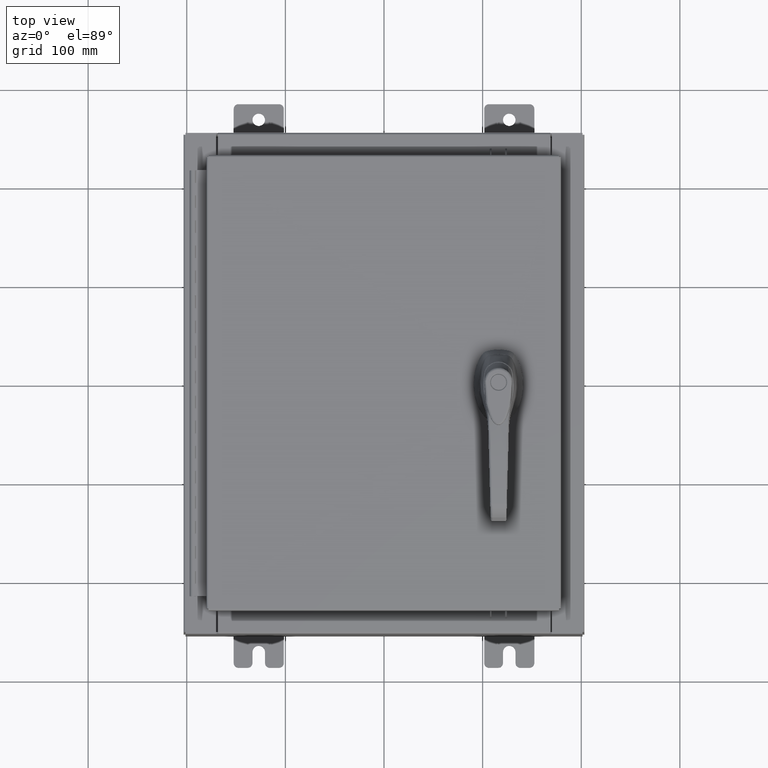
[diagram: clean part render]
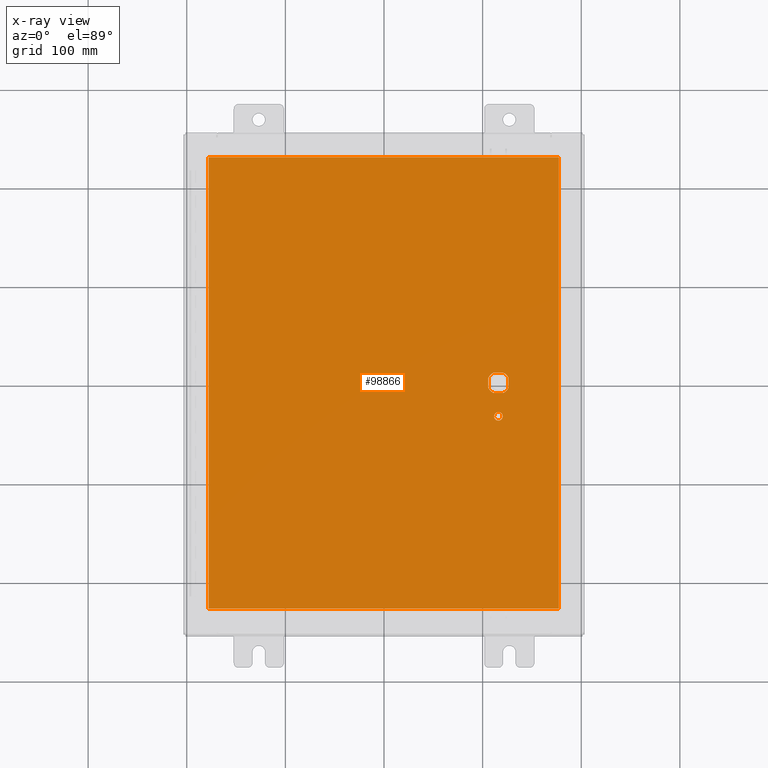
[diagram: x-ray — body ghosted, one internal face saturated and labeled with its STEP entity id]
A machine part, top view, then the same camera in x-ray: the body is ghosted and one INTERNAL B-rep face — a face not visible from any outside direction — is saturated and labeled: STEP entity #98866.
In plain terms, the highlighted planar face has unit normal (0, 0, -1).
Its self-contained STEP definition (entity closure, byte-faithful):
#645 = CARTESIAN_POINT ( 'NONE',  ( -6.990299999999997700, 9.006299999999999500, -0.07470000000000000300 ) ) ;
#1869 = CARTESIAN_POINT ( 'NONE',  ( 4.578000000000002100, 0.0000000000000000000, -0.07470000000000003000 ) ) ;
#2166 = FACE_BOUND ( 'NONE', #15851, .T. ) ;
#2821 = CARTESIAN_POINT ( 'NONE',  ( -6.990299999999996800, -9.006299999999997800, -0.07470000000000000300 ) ) ;
#3172 = CARTESIAN_POINT ( 'NONE',  ( 4.578000000000002100, -1.338000000000000100, -0.07470000000000003000 ) ) ;
#4169 = LINE ( 'NONE', #46514, #68798 ) ;
#5804 = LINE ( 'NONE', #67819, #92848 ) ;
#6265 = VECTOR ( 'NONE', #65821, 39.37007874015748100 ) ;
#6801 = ORIENTED_EDGE ( 'NONE', *, *, #94093, .T. ) ;
#7633 = DIRECTION ( 'NONE',  ( -1.000000000000000000, 0.0000000000000000000, -0.0000000000000000000 ) ) ;
#9697 = CARTESIAN_POINT ( 'NONE',  ( 4.749500000000002100, -1.338000000000000100, -0.07470000000000003000 ) ) ;
#10336 = DIRECTION ( 'NONE',  ( -1.000000000000000000, 0.0000000000000000000, 0.0000000000000000000 ) ) ;
#11613 = DIRECTION ( 'NONE',  ( -1.000000000000000000, 0.0000000000000000000, 0.0000000000000000000 ) ) ;
#12054 = CARTESIAN_POINT ( 'NONE',  ( 4.578000000000002100, 0.0000000000000000000, -0.07470000000000003000 ) ) ;
#12733 = EDGE_LOOP ( 'NONE', ( #17317, #90013, #29049, #48727 ) ) ;
#13422 = ORIENTED_EDGE ( 'NONE', *, *, #51577, .T. ) ;
#15851 = EDGE_LOOP ( 'NONE', ( #79810, #97654 ) ) ;
#16171 = LINE ( 'NONE', #42389, #61040 ) ;
#17317 = ORIENTED_EDGE ( 'NONE', *, *, #42264, .F. ) ;
#17551 = DIRECTION ( 'NONE',  ( -0.0000000000000000000, -0.0000000000000000000, 1.000000000000000000 ) ) ;
#17759 = CARTESIAN_POINT ( 'NONE',  ( 4.406500000000002100, -1.338000000000000100, -0.07470000000000003000 ) ) ;
#18721 = VECTOR ( 'NONE', #100849, 39.37007874015748100 ) ;
#18889 = DIRECTION ( 'NONE',  ( 0.0000000000000000000, -1.000000000000000000, 0.0000000000000000000 ) ) ;
#20543 = DIRECTION ( 'NONE',  ( -1.000000000000000000, 0.0000000000000000000, 0.0000000000000000000 ) ) ;
#21920 = FACE_OUTER_BOUND ( 'NONE', #12733, .T. ) ;
#25306 = CARTESIAN_POINT ( 'NONE',  ( 4.175000000000076200, 0.2002273707563080300, -0.07470000000000003000 ) ) ;
#26927 = CIRCLE ( 'NONE', #86958, 0.4499999999999156900 ) ;
#28110 = LINE ( 'NONE', #36228, #90084 ) ;
#29033 = DIRECTION ( 'NONE',  ( -0.0000000000000000000, -0.0000000000000000000, 1.000000000000000000 ) ) ;
#29049 = ORIENTED_EDGE ( 'NONE', *, *, #64092, .F. ) ;
#29944 = CARTESIAN_POINT ( 'NONE',  ( 4.377772629243692900, -0.4029999999999250300, -0.07470000000000003000 ) ) ;
#30597 = VECTOR ( 'NONE', #104120, 39.37007874015748100 ) ;
#30913 = CARTESIAN_POINT ( 'NONE',  ( 6.990300000000002200, -9.006299999999997800, -0.07470000000000000300 ) ) ;
#32994 = CARTESIAN_POINT ( 'NONE',  ( 6.990300000000002200, -9.006299999999997800, -0.07470000000000021100 ) ) ;
#35909 = LINE ( 'NONE', #45079, #30597 ) ;
#36182 = EDGE_CURVE ( 'NONE', #38286, #81662, #56341, .T. ) ;
#36228 = CARTESIAN_POINT ( 'NONE',  ( -6.990299999999997700, 9.006300000000001300, -0.07470000000000019700 ) ) ;
#36663 = ORIENTED_EDGE ( 'NONE', *, *, #79331, .T. ) ;
#36698 = DIRECTION ( 'NONE',  ( 1.000000000000000000, 0.0000000000000000000, 0.0000000000000000000 ) ) ;
#37903 = AXIS2_PLACEMENT_3D ( 'NONE', #79577, #29033, #88035 ) ;
#38286 = VERTEX_POINT ( 'NONE', #60749 ) ;
#40753 = DIRECTION ( 'NONE',  ( 0.0000000000000000000, 0.0000000000000000000, -1.000000000000000000 ) ) ;
#41127 = CARTESIAN_POINT ( 'NONE',  ( 0.0000000000000000000, 0.0000000000000000000, -0.07470000000000000300 ) ) ;
#41400 = CARTESIAN_POINT ( 'NONE',  ( 4.578000000000002100, 0.0000000000000000000, -0.07470000000000003000 ) ) ;
#41401 = EDGE_CURVE ( 'NONE', #65090, #51188, #16171, .T. ) ;
#42196 = CARTESIAN_POINT ( 'NONE',  ( 4.175000000000076200, -0.2002273707563079800, -0.07470000000000003000 ) ) ;
#42264 = EDGE_CURVE ( 'NONE', #93341, #89087, #108454, .T. ) ;
#42389 = CARTESIAN_POINT ( 'NONE',  ( 4.175000000000076200, 0.0000000000000000000, -0.07470000000000003000 ) ) ;
#42497 = VERTEX_POINT ( 'NONE', #645 ) ;
#42983 = CARTESIAN_POINT ( 'NONE',  ( 4.980999999999927900, -0.2002273707563080300, -0.07470000000000003000 ) ) ;
#45079 = CARTESIAN_POINT ( 'NONE',  ( 0.0000000000000000000, 0.4029999999999252000, -0.07470000000000003000 ) ) ;
#45930 = AXIS2_PLACEMENT_3D ( 'NONE', #3172, #62139, #11613 ) ;
#46492 = AXIS2_PLACEMENT_3D ( 'NONE', #41127, #40753, #7633 ) ;
#46514 = CARTESIAN_POINT ( 'NONE',  ( -6.990299999999997700, -9.006299999999997800, -0.07470000000000021100 ) ) ;
#46761 = EDGE_CURVE ( 'NONE', #84354, #93341, #4169, .T. ) ;
#48415 = CIRCLE ( 'NONE', #89301, 0.4499999999999156900 ) ;
#48727 = ORIENTED_EDGE ( 'NONE', *, *, #63129, .F. ) ;
#48837 = CARTESIAN_POINT ( 'NONE',  ( 4.980999999999927900, 0.0000000000000000000, -0.07470000000000003000 ) ) ;
#49193 = CIRCLE ( 'NONE', #45930, 0.1715000000000000700 ) ;
#49857 = DIRECTION ( 'NONE',  ( -1.000000000000000000, 0.0000000000000000000, 0.0000000000000000000 ) ) ;
#51188 = VERTEX_POINT ( 'NONE', #42196 ) ;
#51577 = EDGE_CURVE ( 'NONE', #51188, #59632, #48415, .T. ) ;
#52526 = CARTESIAN_POINT ( 'NONE',  ( 4.778227370756312100, 0.4029999999999250300, -0.07470000000000003000 ) ) ;
#52766 = CIRCLE ( 'NONE', #72213, 0.4499999999999156900 ) ;
#53258 = CARTESIAN_POINT ( 'NONE',  ( 0.0000000000000000000, -0.4029999999999252000, -0.07470000000000003000 ) ) ;
#53387 = VERTEX_POINT ( 'NONE', #52526 ) ;
#54476 = VERTEX_POINT ( 'NONE', #17759 ) ;
#54989 = DIRECTION ( 'NONE',  ( 1.000000000000000000, -0.0000000000000000000, -0.0000000000000000000 ) ) ;
#56287 = EDGE_CURVE ( 'NONE', #54476, #65850, #83770, .T. ) ;
#56341 = LINE ( 'NONE', #48837, #6265 ) ;
#59632 = VERTEX_POINT ( 'NONE', #29944 ) ;
#60749 = CARTESIAN_POINT ( 'NONE',  ( 4.980999999999927900, 0.2002273707563080300, -0.07470000000000003000 ) ) ;
#60813 = DIRECTION ( 'NONE',  ( -0.0000000000000000000, -0.0000000000000000000, 1.000000000000000000 ) ) ;
#61040 = VECTOR ( 'NONE', #101424, 39.37007874015748100 ) ;
#62139 = DIRECTION ( 'NONE',  ( -0.0000000000000000000, -0.0000000000000000000, 1.000000000000000000 ) ) ;
#63129 = EDGE_CURVE ( 'NONE', #89087, #42497, #5804, .T. ) ;
#63255 = EDGE_CURVE ( 'NONE', #38286, #53387, #65107, .T. ) ;
#63584 = EDGE_CURVE ( 'NONE', #65850, #54476, #49193, .T. ) ;
#64092 = EDGE_CURVE ( 'NONE', #42497, #84354, #28110, .T. ) ;
#65090 = VERTEX_POINT ( 'NONE', #25306 ) ;
#65107 = CIRCLE ( 'NONE', #98975, 0.4499999999999156900 ) ;
#65821 = DIRECTION ( 'NONE',  ( 0.0000000000000000000, -1.000000000000000000, 0.0000000000000000000 ) ) ;
#65850 = VERTEX_POINT ( 'NONE', #9697 ) ;
#67819 = CARTESIAN_POINT ( 'NONE',  ( 6.990300000000002200, 9.006300000000001300, -0.07470000000000076600 ) ) ;
#68069 = CARTESIAN_POINT ( 'NONE',  ( 4.578000000000002100, 0.0000000000000000000, -0.07470000000000003000 ) ) ;
#68798 = VECTOR ( 'NONE', #54989, 39.37007874015748100 ) ;
#70816 = ORIENTED_EDGE ( 'NONE', *, *, #63255, .T. ) ;
#71093 = DIRECTION ( 'NONE',  ( -0.0000000000000000000, -0.0000000000000000000, 1.000000000000000000 ) ) ;
#72148 = ORIENTED_EDGE ( 'NONE', *, *, #41401, .T. ) ;
#72213 = AXIS2_PLACEMENT_3D ( 'NONE', #41400, #100440, #49857 ) ;
#72512 = ORIENTED_EDGE ( 'NONE', *, *, #101622, .T. ) ;
#74052 = VERTEX_POINT ( 'NONE', #103460 ) ;
#74445 = CARTESIAN_POINT ( 'NONE',  ( 4.778227370756312100, -0.4029999999999252000, -0.07470000000000003000 ) ) ;
#76326 = DIRECTION ( 'NONE',  ( -1.000000000000000000, -0.0000000000000000000, -0.0000000000000000000 ) ) ;
#76585 = DIRECTION ( 'NONE',  ( -1.000000000000000000, 8.881784197001256300E-016, 0.0000000000000000000 ) ) ;
#78880 = VECTOR ( 'NONE', #36698, 39.37007874015748100 ) ;
#79331 = EDGE_CURVE ( 'NONE', #53387, #74052, #35909, .T. ) ;
#79577 = CARTESIAN_POINT ( 'NONE',  ( 4.578000000000002100, -1.338000000000000100, -0.07470000000000003000 ) ) ;
#79810 = ORIENTED_EDGE ( 'NONE', *, *, #63584, .T. ) ;
#81662 = VERTEX_POINT ( 'NONE', #42983 ) ;
#82360 = ORIENTED_EDGE ( 'NONE', *, *, #84407, .T. ) ;
#83770 = CIRCLE ( 'NONE', #37903, 0.1715000000000000700 ) ;
#84354 = VERTEX_POINT ( 'NONE', #2821 ) ;
#84407 = EDGE_CURVE ( 'NONE', #59632, #97851, #101298, .T. ) ;
#86958 = AXIS2_PLACEMENT_3D ( 'NONE', #1869, #60813, #10336 ) ;
#88035 = DIRECTION ( 'NONE',  ( -1.000000000000000000, 0.0000000000000000000, 0.0000000000000000000 ) ) ;
#89087 = VERTEX_POINT ( 'NONE', #98340 ) ;
#89220 = FACE_BOUND ( 'NONE', #90430, .T. ) ;
#89301 = AXIS2_PLACEMENT_3D ( 'NONE', #68069, #17551, #76585 ) ;
#90013 = ORIENTED_EDGE ( 'NONE', *, *, #46761, .F. ) ;
#90084 = VECTOR ( 'NONE', #18889, 39.37007874015748100 ) ;
#90430 = EDGE_LOOP ( 'NONE', ( #72512, #109167, #70816, #36663, #6801, #72148, #13422, #82360 ) ) ;
#92848 = VECTOR ( 'NONE', #76326, 39.37007874015748100 ) ;
#93341 = VERTEX_POINT ( 'NONE', #30913 ) ;
#94093 = EDGE_CURVE ( 'NONE', #74052, #65090, #52766, .T. ) ;
#97654 = ORIENTED_EDGE ( 'NONE', *, *, #56287, .T. ) ;
#97851 = VERTEX_POINT ( 'NONE', #74445 ) ;
#98340 = CARTESIAN_POINT ( 'NONE',  ( 6.990300000000001300, 9.006300000000001300, -0.07470000000000000300 ) ) ;
#98866 = ADVANCED_FACE ( 'NONE', ( #2166, #21920, #89220 ), #108648, .T. ) ;
#98975 = AXIS2_PLACEMENT_3D ( 'NONE', #12054, #71093, #20543 ) ;
#100440 = DIRECTION ( 'NONE',  ( -0.0000000000000000000, -0.0000000000000000000, 1.000000000000000000 ) ) ;
#100849 = DIRECTION ( 'NONE',  ( 0.0000000000000000000, 1.000000000000000000, 0.0000000000000000000 ) ) ;
#101298 = LINE ( 'NONE', #53258, #78880 ) ;
#101424 = DIRECTION ( 'NONE',  ( 0.0000000000000000000, -1.000000000000000000, 0.0000000000000000000 ) ) ;
#101622 = EDGE_CURVE ( 'NONE', #97851, #81662, #26927, .T. ) ;
#103460 = CARTESIAN_POINT ( 'NONE',  ( 4.377772629243692900, 0.4029999999999252000, -0.07470000000000003000 ) ) ;
#104120 = DIRECTION ( 'NONE',  ( -1.000000000000000000, 0.0000000000000000000, 0.0000000000000000000 ) ) ;
#108454 = LINE ( 'NONE', #32994, #18721 ) ;
#108648 = PLANE ( 'NONE',  #46492 ) ;
#109167 = ORIENTED_EDGE ( 'NONE', *, *, #36182, .F. ) ;